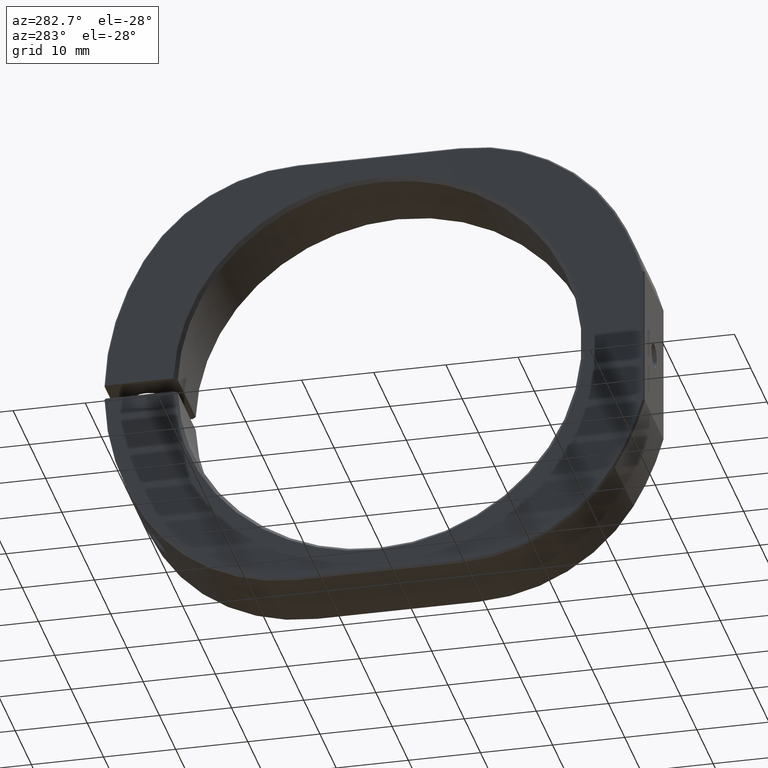
[diagram: clean part render]
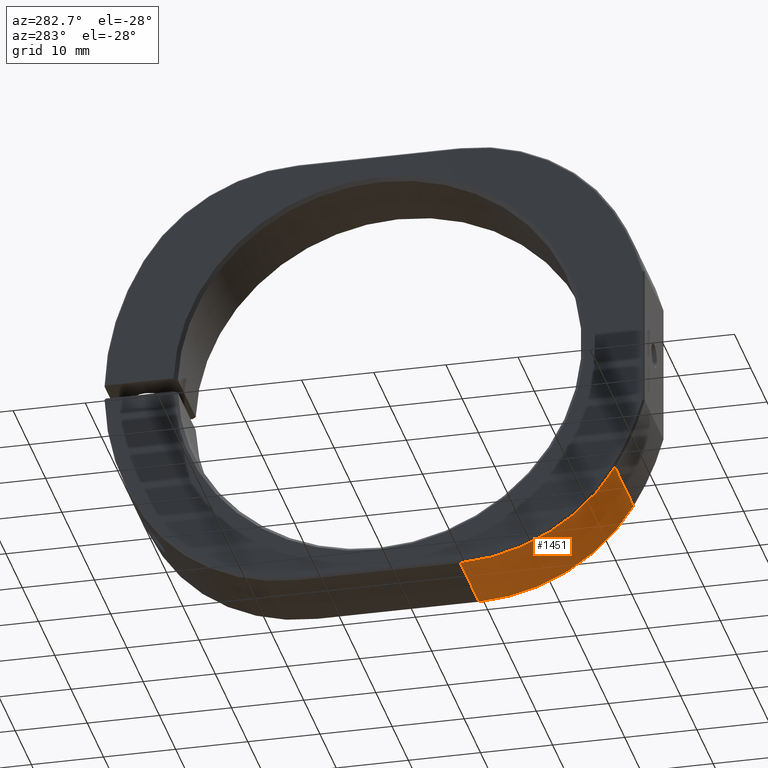
[diagram: same view with one face highlighted and labeled with its STEP entity id]
A machine part, auxiliary view. The second image highlights one B-rep face of the part: STEP entity #1451.
In plain terms, the highlighted cylindrical surface (partial cylindrical patch) has radius 25 mm, axis along (-1, -0, -0).
Its self-contained STEP definition (entity closure, byte-faithful):
#160 = DIRECTION ( 'NONE',  ( 1.000000000000000000, 0.0000000000000000000, 0.0000000000000000000 ) ) ;
#192 = CARTESIAN_POINT ( 'NONE',  ( 0.5085676037483114476, -18.74742428530110772, -31.75000000000001421 ) ) ;
#203 = EDGE_CURVE ( 'NONE', #1421, #1060, #1994, .T. ) ;
#213 = VECTOR ( 'NONE', #2152, 1000.000000000000000 ) ;
#261 = ORIENTED_EDGE ( 'NONE', *, *, #937, .F. ) ;
#263 = CARTESIAN_POINT ( 'NONE',  ( -11.24143239625168889, -18.74742428530110772, -31.75000000000001421 ) ) ;
#272 = VECTOR ( 'NONE', #1982, 1000.000000000000000 ) ;
#327 = CARTESIAN_POINT ( 'NONE',  ( -11.24143239625168889, -40.17316432178407126, -19.63167938931300682 ) ) ;
#367 = CARTESIAN_POINT ( 'NONE',  ( 0.2585676037482695921, -40.17316432178407126, -19.63167938931300682 ) ) ;
#407 = ORIENTED_EDGE ( 'NONE', *, *, #468, .T. ) ;
#468 = EDGE_CURVE ( 'NONE', #719, #1677, #670, .T. ) ;
#508 = DIRECTION ( 'NONE',  ( 0.0000000000000000000, 0.0000000000000000000, 1.000000000000000000 ) ) ;
#561 = CARTESIAN_POINT ( 'NONE',  ( 0.2585676037482695921, -18.74742428530110772, -6.750000000000013323 ) ) ;
#670 = CIRCLE ( 'NONE', #2049, 25.00000000000000000 ) ;
#709 = CARTESIAN_POINT ( 'NONE',  ( 0.5085676037483114476, -40.17316432178407126, -19.63167938931300682 ) ) ;
#719 = VERTEX_POINT ( 'NONE', #1075 ) ;
#739 = FACE_OUTER_BOUND ( 'NONE', #1975, .T. ) ;
#757 = ORIENTED_EDGE ( 'NONE', *, *, #934, .F. ) ;
#843 = CARTESIAN_POINT ( 'NONE',  ( 0.5085676037483114476, -18.74742428530110772, -6.750000000000013323 ) ) ;
#934 = EDGE_CURVE ( 'NONE', #1421, #1677, #1151, .T. ) ;
#937 = EDGE_CURVE ( 'NONE', #719, #1060, #1374, .T. ) ;
#960 = AXIS2_PLACEMENT_3D ( 'NONE', #843, #1585, #508 ) ;
#998 = CYLINDRICAL_SURFACE ( 'NONE', #960, 25.00000000000000000 ) ;
#1060 = VERTEX_POINT ( 'NONE', #263 ) ;
#1075 = CARTESIAN_POINT ( 'NONE',  ( 0.2585676037482695921, -18.74742428530110772, -31.75000000000001421 ) ) ;
#1088 = DIRECTION ( 'NONE',  ( -1.000000000000000000, 0.0000000000000000000, 0.0000000000000000000 ) ) ;
#1151 = LINE ( 'NONE', #709, #213 ) ;
#1278 = DIRECTION ( 'NONE',  ( 0.0000000000000000000, 0.0000000000000000000, -1.000000000000000000 ) ) ;
#1374 = LINE ( 'NONE', #192, #272 ) ;
#1421 = VERTEX_POINT ( 'NONE', #327 ) ;
#1451 = ADVANCED_FACE ( 'NONE', ( #739 ), #998, .T. ) ;
#1585 = DIRECTION ( 'NONE',  ( -1.000000000000000000, -0.0000000000000000000, -0.0000000000000000000 ) ) ;
#1633 = CARTESIAN_POINT ( 'NONE',  ( -11.24143239625168889, -18.74742428530110772, -6.750000000000013323 ) ) ;
#1677 = VERTEX_POINT ( 'NONE', #367 ) ;
#1700 = ORIENTED_EDGE ( 'NONE', *, *, #203, .T. ) ;
#1808 = DIRECTION ( 'NONE',  ( 0.0000000000000000000, 0.0000000000000000000, -1.000000000000000000 ) ) ;
#1975 = EDGE_LOOP ( 'NONE', ( #757, #1700, #261, #407 ) ) ;
#1982 = DIRECTION ( 'NONE',  ( -1.000000000000000000, 0.0000000000000000000, 0.0000000000000000000 ) ) ;
#1994 = CIRCLE ( 'NONE', #2279, 25.00000000000000000 ) ;
#2049 = AXIS2_PLACEMENT_3D ( 'NONE', #561, #1088, #1278 ) ;
#2152 = DIRECTION ( 'NONE',  ( 1.000000000000000000, 0.0000000000000000000, 0.0000000000000000000 ) ) ;
#2279 = AXIS2_PLACEMENT_3D ( 'NONE', #1633, #160, #1808 ) ;